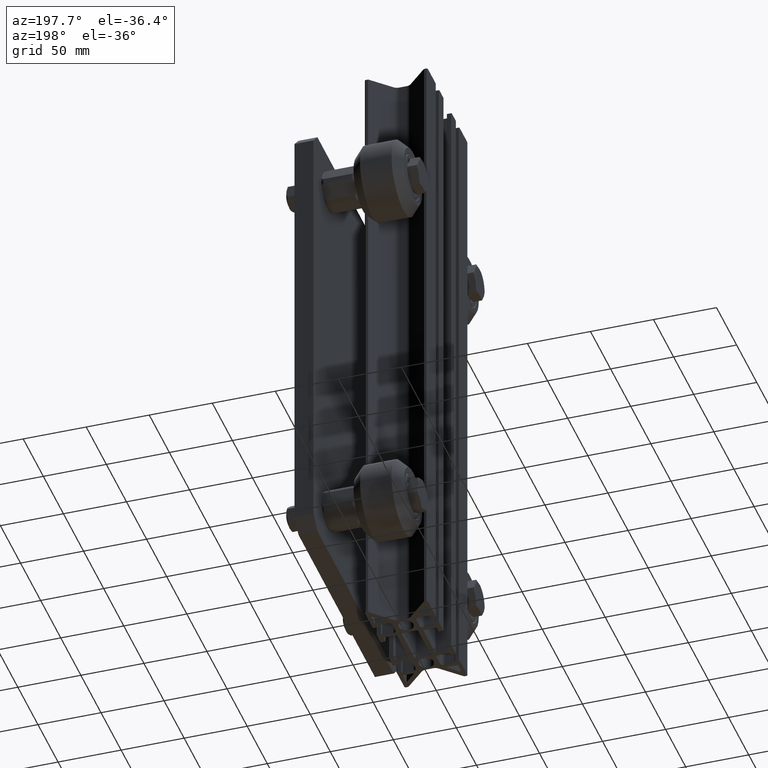
[diagram: clean part render]
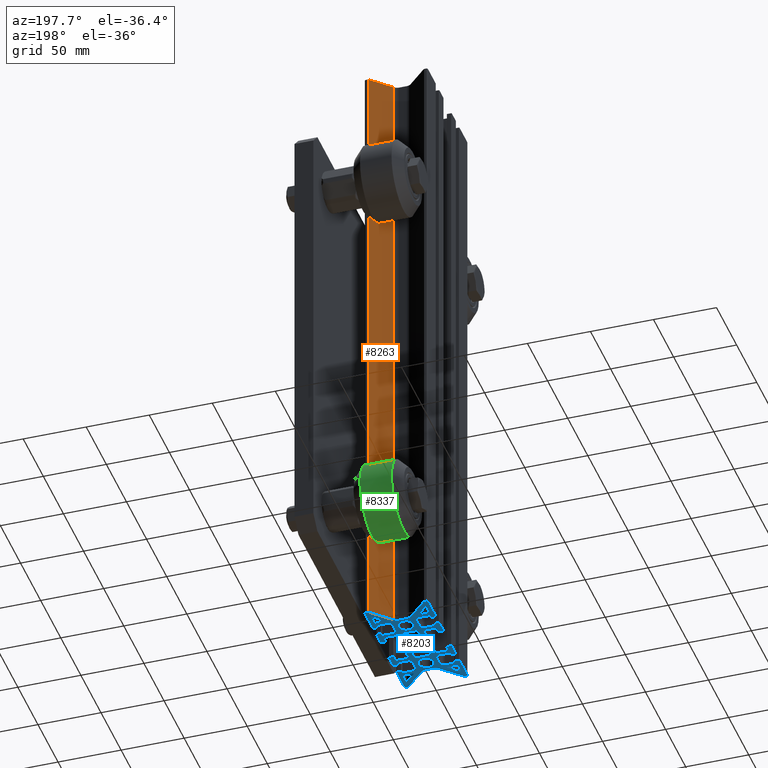
[diagram: same view with three faces highlighted in distinct colors, each labeled with its STEP entity id]
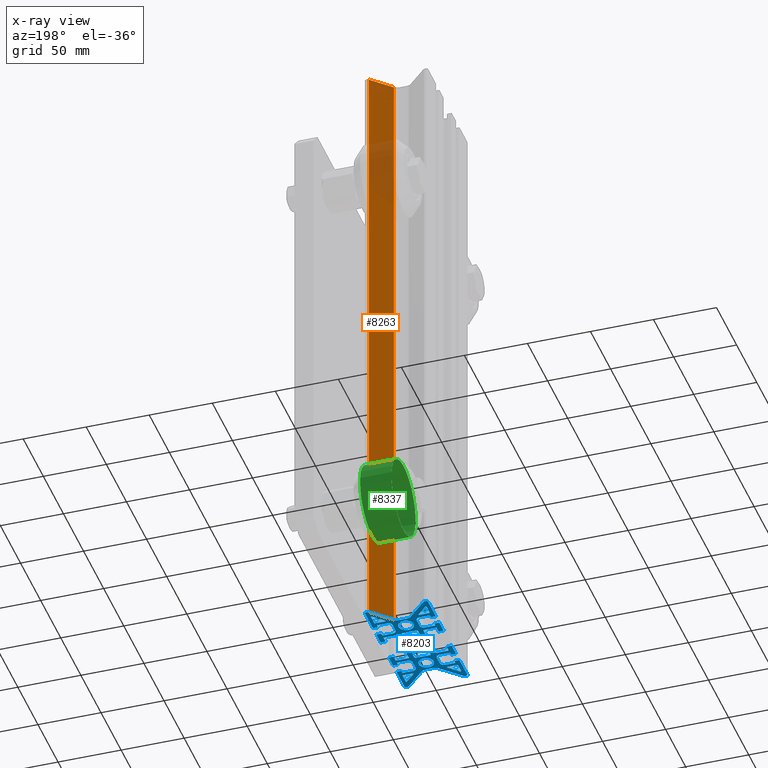
[diagram: x-ray of the same camera — body ghosted, the three highlighted faces saturated]
A machine part, auxiliary view with three faces highlighted in distinct colors.
The next image is the same camera in x-ray (body ghosted, the three faces saturated) — at least one of them is partly hidden behind the body in this view.
Their STEP definitions:

[orange] entity #8263 — the highlighted planar face has unit normal (-0.7071, 0.7071, 0).
#679=FACE_OUTER_BOUND('',#1140,.T.);
#1140=EDGE_LOOP('',(#5979,#5980,#5981,#5982));
#1988=LINE('',#12362,#2611);
#2122=LINE('',#12807,#2745);
#2207=LINE('',#13011,#2830);
#2208=LINE('',#13013,#2831);
#2611=VECTOR('',#9882,10.);
#2745=VECTOR('',#10262,10.);
#2830=VECTOR('',#10501,10.);
#2831=VECTOR('',#10504,10.);
#3252=VERTEX_POINT('',#12359);
#3253=VERTEX_POINT('',#12361);
#3440=VERTEX_POINT('',#12804);
#3441=VERTEX_POINT('',#12806);
#4105=EDGE_CURVE('',#3252,#3253,#1988,.T.);
#4327=EDGE_CURVE('',#3440,#3441,#2122,.T.);
#4430=EDGE_CURVE('',#3440,#3253,#2207,.T.);
#4431=EDGE_CURVE('',#3441,#3252,#2208,.T.);
#5979=ORIENTED_EDGE('',*,*,#4430,.T.);
#5980=ORIENTED_EDGE('',*,*,#4105,.F.);
#5981=ORIENTED_EDGE('',*,*,#4431,.F.);
#5982=ORIENTED_EDGE('',*,*,#4327,.F.);
#7922=PLANE('',#9119);
#8263=ADVANCED_FACE('',(#679),#7922,.T.);
#9119=AXIS2_PLACEMENT_3D('',#13012,#10502,#10503);
#9882=DIRECTION('',(-0.707106781186628,-0.707106781186467,0.));
#10262=DIRECTION('',(0.707106781186628,0.707106781186467,0.));
#10501=DIRECTION('',(0.,0.,1.));
#10502=DIRECTION('center_axis',(-0.707106781186467,0.707106781186628,0.));
#10503=DIRECTION('ref_axis',(-0.707106781186628,-0.707106781186467,0.));
#10504=DIRECTION('',(0.,0.,1.));
#12359=CARTESIAN_POINT('',(21.7514308557036,49.6616216364643,450.));
#12361=CARTESIAN_POINT('',(6.65427531335953,34.5644660941237,450.));
#12362=CARTESIAN_POINT('',(21.7514308557036,49.6616216364643,450.));
#12804=CARTESIAN_POINT('',(6.65427531335953,34.5644660941237,-50.));
#12806=CARTESIAN_POINT('',(21.7514308557036,49.6616216364643,-50.));
#12807=CARTESIAN_POINT('',(21.7514308557036,49.6616216364643,-50.));
#13011=CARTESIAN_POINT('',(6.65427531335953,34.5644660941237,0.));
#13012=CARTESIAN_POINT('Origin',(21.7514308557036,49.6616216364643,0.));
#13013=CARTESIAN_POINT('',(21.7514308557036,49.6616216364643,0.));

[blue] entity #8203 — the highlighted planar face has unit normal (0, 0, 1).
#531=FACE_BOUND('',#1074,.T.);
#532=FACE_BOUND('',#1075,.T.);
#533=FACE_BOUND('',#1076,.T.);
#534=FACE_BOUND('',#1077,.T.);
#535=FACE_BOUND('',#1078,.T.);
#536=FACE_BOUND('',#1079,.T.);
#537=FACE_BOUND('',#1080,.T.);
#619=FACE_OUTER_BOUND('',#1073,.T.);
#1073=EDGE_LOOP('',(#5605,#5606,#5607,#5608,#5609,#5610,#5611,#5612,#5613,
#5614,#5615,#5616,#5617,#5618,#5619,#5620,#5621,#5622,#5623,#5624,#5625,
#5626,#5627,#5628,#5629,#5630,#5631,#5632,#5633,#5634,#5635,#5636,#5637,
#5638,#5639,#5640,#5641,#5642,#5643,#5644,#5645,#5646,#5647,#5648,#5649,
#5650,#5651,#5652,#5653,#5654,#5655,#5656,#5657,#5658,#5659,#5660,#5661,
#5662,#5663,#5664,#5665,#5666,#5667,#5668,#5669,#5670,#5671,#5672,#5673,
#5674,#5675,#5676,#5677,#5678,#5679,#5680,#5681,#5682,#5683,#5684,#5685,
#5686,#5687,#5688,#5689,#5690,#5691,#5692,#5693,#5694,#5695,#5696,#5697,
#5698,#5699,#5700,#5701,#5702,#5703,#5704,#5705,#5706,#5707,#5708));
#1074=EDGE_LOOP('',(#5709,#5710,#5711,#5712,#5713,#5714,#5715,#5716));
#1075=EDGE_LOOP('',(#5717));
#1076=EDGE_LOOP('',(#5718));
#1077=EDGE_LOOP('',(#5719,#5720,#5721,#5722,#5723,#5724));
#1078=EDGE_LOOP('',(#5725,#5726,#5727,#5728,#5729,#5730));
#1079=EDGE_LOOP('',(#5731,#5732,#5733,#5734,#5735,#5736));
#1080=EDGE_LOOP('',(#5737,#5738,#5739,#5740,#5741,#5742));
#1600=CIRCLE('',#8964,1.00000000000164);
#1601=CIRCLE('',#8967,1.00000000000164);
#1602=CIRCLE('',#8970,1.00000000000164);
#1603=CIRCLE('',#8973,1.00000000000164);
#1604=CIRCLE('',#8976,5.99999999999991);
#1605=CIRCLE('',#8978,5.99999999999991);
#1606=CIRCLE('',#8981,0.5);
#1607=CIRCLE('',#8984,0.500000000000014);
#1608=CIRCLE('',#8987,0.5);
#1609=CIRCLE('',#8990,0.500000000000014);
#1610=CIRCLE('',#8993,0.5);
#1611=CIRCLE('',#8996,0.5);
#1612=CIRCLE('',#8999,0.500000000000014);
#1613=CIRCLE('',#9002,0.5);
#1614=CIRCLE('',#9005,0.5);
#1615=CIRCLE('',#9007,0.5);
#1616=CIRCLE('',#9010,0.5);
#1617=CIRCLE('',#9013,0.500000000000014);
#1618=CIRCLE('',#9016,1.00000000000164);
#1619=CIRCLE('',#9017,1.00000000000164);
#1620=CIRCLE('',#9018,5.00000000000011);
#1621=CIRCLE('',#9019,5.);
#1622=CIRCLE('',#9020,1.00000000000164);
#1623=CIRCLE('',#9021,1.00000000000164);
#1624=CIRCLE('',#9022,0.5);
#1625=CIRCLE('',#9023,0.5);
#1626=CIRCLE('',#9024,3.00000000000013);
#1627=CIRCLE('',#9025,3.00000000000004);
#1628=CIRCLE('',#9026,0.499999999999914);
#1629=CIRCLE('',#9027,0.5);
#1630=CIRCLE('',#9028,0.5);
#1631=CIRCLE('',#9029,0.5);
#1632=CIRCLE('',#9030,0.5);
#1633=CIRCLE('',#9031,0.5);
#1634=CIRCLE('',#9032,0.5);
#1635=CIRCLE('',#9033,0.5);
#1636=CIRCLE('',#9034,3.00000000000004);
#1637=CIRCLE('',#9035,3.00000000000004);
#1638=CIRCLE('',#9036,0.5);
#1639=CIRCLE('',#9037,0.5);
#1640=CIRCLE('',#9038,1.00000000000164);
#1641=CIRCLE('',#9039,1.00000000000164);
#1642=CIRCLE('',#9040,4.99999999999991);
#1643=CIRCLE('',#9041,5.);
#1644=CIRCLE('',#9042,1.00000000000164);
#1645=CIRCLE('',#9043,1.00000000000164);
#1646=CIRCLE('',#9044,0.5);
#1647=CIRCLE('',#9045,0.5);
#1648=CIRCLE('',#9046,3.00000000000013);
#1649=CIRCLE('',#9047,3.00000000000004);
#1650=CIRCLE('',#9048,0.5);
#1651=CIRCLE('',#9049,0.5);
#1652=CIRCLE('',#9050,0.5);
#1653=CIRCLE('',#9051,0.5);
#1654=CIRCLE('',#9052,0.5);
#1655=CIRCLE('',#9053,0.5);
#1656=CIRCLE('',#9054,0.499999999999869);
#1657=CIRCLE('',#9055,0.5);
#1658=CIRCLE('',#9056,3.00000000000004);
#1659=CIRCLE('',#9057,3.00000000000013);
#1660=CIRCLE('',#9058,0.5);
#1661=CIRCLE('',#9059,0.5);
#2040=LINE('',#12556,#2663);
#2043=LINE('',#12564,#2666);
#2046=LINE('',#12572,#2669);
#2049=LINE('',#12579,#2672);
#2053=LINE('',#12592,#2676);
#2056=LINE('',#12600,#2679);
#2059=LINE('',#12608,#2682);
#2062=LINE('',#12616,#2685);
#2065=LINE('',#12624,#2688);
#2068=LINE('',#12632,#2691);
#2071=LINE('',#12640,#2694);
#2074=LINE('',#12648,#2697);
#2077=LINE('',#12656,#2700);
#2081=LINE('',#12668,#2704);
#2084=LINE('',#12676,#2707);
#2087=LINE('',#12683,#2710);
#2088=LINE('',#12687,#2711);
#2089=LINE('',#12691,#2712);
#2090=LINE('',#12695,#2713);
#2091=LINE('',#12699,#2714);
#2092=LINE('',#12703,#2715);
#2093=LINE('',#12707,#2716);
#2094=LINE('',#12711,#2717);
#2095=LINE('',#12715,#2718);
#2096=LINE('',#12719,#2719);
#2097=LINE('',#12721,#2720);
#2098=LINE('',#12725,#2721);
#2099=LINE('',#12729,#2722);
#2100=LINE('',#12731,#2723);
#2101=LINE('',#12735,#2724);
#2102=LINE('',#12739,#2725);
#2103=LINE('',#12743,#2726);
#2104=LINE('',#12747,#2727);
#2105=LINE('',#12749,#2728);
#2106=LINE('',#12751,#2729);
#2107=LINE('',#12753,#2730);
#2108=LINE('',#12755,#2731);
#2109=LINE('',#12759,#2732);
#2110=LINE('',#12763,#2733);
#2111=LINE('',#12767,#2734);
#2112=LINE('',#12771,#2735);
#2113=LINE('',#12773,#2736);
#2114=LINE('',#12777,#2737);
#2115=LINE('',#12781,#2738);
#2116=LINE('',#12783,#2739);
#2117=LINE('',#12787,#2740);
#2118=LINE('',#12791,#2741);
#2119=LINE('',#12795,#2742);
#2120=LINE('',#12799,#2743);
#2121=LINE('',#12803,#2744);
#2122=LINE('',#12807,#2745);
#2123=LINE('',#12811,#2746);
#2124=LINE('',#12815,#2747);
#2125=LINE('',#12819,#2748);
#2126=LINE('',#12823,#2749);
#2127=LINE('',#12825,#2750);
#2128=LINE('',#12829,#2751);
#2129=LINE('',#12833,#2752);
#2130=LINE('',#12835,#2753);
#2131=LINE('',#12839,#2754);
#2132=LINE('',#12843,#2755);
#2133=LINE('',#12847,#2756);
#2134=LINE('',#12851,#2757);
#2135=LINE('',#12853,#2758);
#2136=LINE('',#12855,#2759);
#2137=LINE('',#12857,#2760);
#2138=LINE('',#12859,#2761);
#2139=LINE('',#12863,#2762);
#2140=LINE('',#12867,#2763);
#2141=LINE('',#12871,#2764);
#2142=LINE('',#12875,#2765);
#2143=LINE('',#12877,#2766);
#2144=LINE('',#12881,#2767);
#2145=LINE('',#12885,#2768);
#2146=LINE('',#12887,#2769);
#2147=LINE('',#12891,#2770);
#2663=VECTOR('',#10028,10.);
#2666=VECTOR('',#10037,10.);
#2669=VECTOR('',#10046,10.);
#2672=VECTOR('',#10055,10.);
#2676=VECTOR('',#10069,10.);
#2679=VECTOR('',#10078,10.);
#2682=VECTOR('',#10087,10.);
#2685=VECTOR('',#10096,10.);
#2688=VECTOR('',#10105,10.);
#2691=VECTOR('',#10114,10.);
#2694=VECTOR('',#10123,10.);
#2697=VECTOR('',#10132,10.);
#2700=VECTOR('',#10141,10.);
#2704=VECTOR('',#10155,10.);
#2707=VECTOR('',#10164,10.);
#2710=VECTOR('',#10173,10.);
#2711=VECTOR('',#10176,10.);
#2712=VECTOR('',#10179,10.);
#2713=VECTOR('',#10182,10.);
#2714=VECTOR('',#10185,10.);
#2715=VECTOR('',#10188,10.);
#2716=VECTOR('',#10191,10.);
#2717=VECTOR('',#10194,10.);
#2718=VECTOR('',#10197,10.);
#2719=VECTOR('',#10200,10.);
#2720=VECTOR('',#10201,10.);
#2721=VECTOR('',#10204,10.);
#2722=VECTOR('',#10207,10.);
#2723=VECTOR('',#10208,10.);
#2724=VECTOR('',#10211,10.);
#2725=VECTOR('',#10214,10.);
#2726=VECTOR('',#10217,10.);
#2727=VECTOR('',#10220,10.);
#2728=VECTOR('',#10221,10.);
#2729=VECTOR('',#10222,10.);
#2730=VECTOR('',#10223,10.);
#2731=VECTOR('',#10224,10.);
#2732=VECTOR('',#10227,10.);
#2733=VECTOR('',#10230,10.);
#2734=VECTOR('',#10233,10.);
#2735=VECTOR('',#10236,10.);
#2736=VECTOR('',#10237,10.);
#2737=VECTOR('',#10240,10.);
#2738=VECTOR('',#10243,10.);
#2739=VECTOR('',#10244,10.);
#2740=VECTOR('',#10247,10.);
#2741=VECTOR('',#10250,10.);
#2742=VECTOR('',#10253,10.);
#2743=VECTOR('',#10256,10.);
#2744=VECTOR('',#10259,10.);
#2745=VECTOR('',#10262,10.);
#2746=VECTOR('',#10265,10.);
#2747=VECTOR('',#10268,10.);
#2748=VECTOR('',#10271,10.);
#2749=VECTOR('',#10274,10.);
#2750=VECTOR('',#10275,10.);
#2751=VECTOR('',#10278,10.);
#2752=VECTOR('',#10281,10.);
#2753=VECTOR('',#10282,10.);
#2754=VECTOR('',#10285,10.);
#2755=VECTOR('',#10288,10.);
#2756=VECTOR('',#10291,10.);
#2757=VECTOR('',#10294,10.);
#2758=VECTOR('',#10295,10.);
#2759=VECTOR('',#10296,10.);
#2760=VECTOR('',#10297,10.);
#2761=VECTOR('',#10298,10.);
#2762=VECTOR('',#10301,10.);
#2763=VECTOR('',#10304,10.);
#2764=VECTOR('',#10307,10.);
#2765=VECTOR('',#10310,10.);
#2766=VECTOR('',#10311,10.);
#2767=VECTOR('',#10314,10.);
#2768=VECTOR('',#10317,10.);
#2769=VECTOR('',#10318,10.);
#2770=VECTOR('',#10321,10.);
#3346=VERTEX_POINT('',#12549);
#3347=VERTEX_POINT('',#12551);
#3348=VERTEX_POINT('',#12555);
#3349=VERTEX_POINT('',#12559);
#3350=VERTEX_POINT('',#12563);
#3351=VERTEX_POINT('',#12567);
#3352=VERTEX_POINT('',#12571);
#3353=VERTEX_POINT('',#12575);
#3354=VERTEX_POINT('',#12581);
#3355=VERTEX_POINT('',#12585);
#3356=VERTEX_POINT('',#12589);
#3357=VERTEX_POINT('',#12591);
#3358=VERTEX_POINT('',#12595);
#3359=VERTEX_POINT('',#12599);
#3360=VERTEX_POINT('',#12603);
#3361=VERTEX_POINT('',#12607);
#3362=VERTEX_POINT('',#12613);
#3363=VERTEX_POINT('',#12615);
#3364=VERTEX_POINT('',#12619);
#3365=VERTEX_POINT('',#12623);
#3366=VERTEX_POINT('',#12627);
#3367=VERTEX_POINT('',#12631);
#3368=VERTEX_POINT('',#12637);
#3369=VERTEX_POINT('',#12639);
#3370=VERTEX_POINT('',#12643);
#3371=VERTEX_POINT('',#12647);
#3372=VERTEX_POINT('',#12651);
#3373=VERTEX_POINT('',#12655);
#3374=VERTEX_POINT('',#12661);
#3375=VERTEX_POINT('',#12663);
#3376=VERTEX_POINT('',#12667);
#3377=VERTEX_POINT('',#12671);
#3378=VERTEX_POINT('',#12675);
#3379=VERTEX_POINT('',#12679);
#3380=VERTEX_POINT('',#12685);
#3381=VERTEX_POINT('',#12686);
#3382=VERTEX_POINT('',#12688);
#3383=VERTEX_POINT('',#12690);
#3384=VERTEX_POINT('',#12692);
#3385=VERTEX_POINT('',#12694);
#3386=VERTEX_POINT('',#12696);
#3387=VERTEX_POINT('',#12698);
#3388=VERTEX_POINT('',#12700);
#3389=VERTEX_POINT('',#12702);
#3390=VERTEX_POINT('',#12704);
#3391=VERTEX_POINT('',#12706);
#3392=VERTEX_POINT('',#12708);
#3393=VERTEX_POINT('',#12710);
#3394=VERTEX_POINT('',#12712);
#3395=VERTEX_POINT('',#12714);
#3396=VERTEX_POINT('',#12716);
#3397=VERTEX_POINT('',#12718);
#3398=VERTEX_POINT('',#12720);
#3399=VERTEX_POINT('',#12722);
#3400=VERTEX_POINT('',#12724);
#3401=VERTEX_POINT('',#12726);
#3402=VERTEX_POINT('',#12728);
#3403=VERTEX_POINT('',#12730);
#3404=VERTEX_POINT('',#12732);
#3405=VERTEX_POINT('',#12734);
#3406=VERTEX_POINT('',#12736);
#3407=VERTEX_POINT('',#12738);
#3408=VERTEX_POINT('',#12740);
#3409=VERTEX_POINT('',#12742);
#3410=VERTEX_POINT('',#12744);
#3411=VERTEX_POINT('',#12746);
#3412=VERTEX_POINT('',#12748);
#3413=VERTEX_POINT('',#12750);
#3414=VERTEX_POINT('',#12752);
#3415=VERTEX_POINT('',#12754);
#3416=VERTEX_POINT('',#12756);
#3417=VERTEX_POINT('',#12758);
#3418=VERTEX_POINT('',#12760);
#3419=VERTEX_POINT('',#12762);
#3420=VERTEX_POINT('',#12764);
#3421=VERTEX_POINT('',#12766);
#3422=VERTEX_POINT('',#12768);
#3423=VERTEX_POINT('',#12770);
#3424=VERTEX_POINT('',#12772);
#3425=VERTEX_POINT('',#12774);
#3426=VERTEX_POINT('',#12776);
#3427=VERTEX_POINT('',#12778);
#3428=VERTEX_POINT('',#12780);
#3429=VERTEX_POINT('',#12782);
#3430=VERTEX_POINT('',#12784);
#3431=VERTEX_POINT('',#12786);
#3432=VERTEX_POINT('',#12788);
#3433=VERTEX_POINT('',#12790);
#3434=VERTEX_POINT('',#12792);
#3435=VERTEX_POINT('',#12794);
#3436=VERTEX_POINT('',#12796);
#3437=VERTEX_POINT('',#12798);
#3438=VERTEX_POINT('',#12800);
#3439=VERTEX_POINT('',#12802);
#3440=VERTEX_POINT('',#12804);
#3441=VERTEX_POINT('',#12806);
#3442=VERTEX_POINT('',#12808);
#3443=VERTEX_POINT('',#12810);
#3444=VERTEX_POINT('',#12812);
#3445=VERTEX_POINT('',#12814);
#3446=VERTEX_POINT('',#12816);
#3447=VERTEX_POINT('',#12818);
#3448=VERTEX_POINT('',#12820);
#3449=VERTEX_POINT('',#12822);
#3450=VERTEX_POINT('',#12824);
#3451=VERTEX_POINT('',#12826);
#3452=VERTEX_POINT('',#12828);
#3453=VERTEX_POINT('',#12830);
#3454=VERTEX_POINT('',#12832);
#3455=VERTEX_POINT('',#12834);
#3456=VERTEX_POINT('',#12836);
#3457=VERTEX_POINT('',#12838);
#3458=VERTEX_POINT('',#12840);
#3459=VERTEX_POINT('',#12842);
#3460=VERTEX_POINT('',#12844);
#3461=VERTEX_POINT('',#12846);
#3462=VERTEX_POINT('',#12848);
#3463=VERTEX_POINT('',#12850);
#3464=VERTEX_POINT('',#12852);
#3465=VERTEX_POINT('',#12854);
#3466=VERTEX_POINT('',#12856);
#3467=VERTEX_POINT('',#12858);
#3468=VERTEX_POINT('',#12860);
#3469=VERTEX_POINT('',#12862);
#3470=VERTEX_POINT('',#12864);
#3471=VERTEX_POINT('',#12866);
#3472=VERTEX_POINT('',#12868);
#3473=VERTEX_POINT('',#12870);
#3474=VERTEX_POINT('',#12872);
#3475=VERTEX_POINT('',#12874);
#3476=VERTEX_POINT('',#12876);
#3477=VERTEX_POINT('',#12878);
#3478=VERTEX_POINT('',#12880);
#3479=VERTEX_POINT('',#12882);
#3480=VERTEX_POINT('',#12884);
#3481=VERTEX_POINT('',#12886);
#3482=VERTEX_POINT('',#12888);
#3483=VERTEX_POINT('',#12890);
#4200=EDGE_CURVE('',#3347,#3346,#1600,.T.);
#4202=EDGE_CURVE('',#3348,#3347,#2040,.T.);
#4204=EDGE_CURVE('',#3349,#3348,#1601,.T.);
#4206=EDGE_CURVE('',#3350,#3349,#2043,.T.);
#4208=EDGE_CURVE('',#3351,#3350,#1602,.T.);
#4210=EDGE_CURVE('',#3352,#3351,#2046,.T.);
#4212=EDGE_CURVE('',#3353,#3352,#1603,.T.);
#4214=EDGE_CURVE('',#3346,#3353,#2049,.T.);
#4215=EDGE_CURVE('',#3354,#3354,#1604,.T.);
#4217=EDGE_CURVE('',#3355,#3355,#1605,.T.);
#4220=EDGE_CURVE('',#3357,#3356,#2053,.T.);
#4222=EDGE_CURVE('',#3358,#3357,#1606,.T.);
#4224=EDGE_CURVE('',#3359,#3358,#2056,.T.);
#4226=EDGE_CURVE('',#3360,#3359,#1607,.T.);
#4228=EDGE_CURVE('',#3361,#3360,#2059,.T.);
#4230=EDGE_CURVE('',#3356,#3361,#1608,.T.);
#4232=EDGE_CURVE('',#3363,#3362,#2062,.T.);
#4234=EDGE_CURVE('',#3364,#3363,#1609,.T.);
#4236=EDGE_CURVE('',#3365,#3364,#2065,.T.);
#4238=EDGE_CURVE('',#3366,#3365,#1610,.T.);
#4240=EDGE_CURVE('',#3367,#3366,#2068,.T.);
#4242=EDGE_CURVE('',#3362,#3367,#1611,.T.);
#4244=EDGE_CURVE('',#3369,#3368,#2071,.T.);
#4246=EDGE_CURVE('',#3370,#3369,#1612,.T.);
#4248=EDGE_CURVE('',#3371,#3370,#2074,.T.);
#4250=EDGE_CURVE('',#3372,#3371,#1613,.T.);
#4252=EDGE_CURVE('',#3373,#3372,#2077,.T.);
#4254=EDGE_CURVE('',#3368,#3373,#1614,.T.);
#4256=EDGE_CURVE('',#3375,#3374,#1615,.T.);
#4258=EDGE_CURVE('',#3376,#3375,#2081,.T.);
#4260=EDGE_CURVE('',#3377,#3376,#1616,.T.);
#4262=EDGE_CURVE('',#3378,#3377,#2084,.T.);
#4264=EDGE_CURVE('',#3379,#3378,#1617,.T.);
#4266=EDGE_CURVE('',#3374,#3379,#2087,.T.);
#4267=EDGE_CURVE('',#3380,#3381,#2088,.T.);
#4268=EDGE_CURVE('',#3381,#3382,#1618,.T.);
#4269=EDGE_CURVE('',#3382,#3383,#2089,.T.);
#4270=EDGE_CURVE('',#3383,#3384,#1619,.T.);
#4271=EDGE_CURVE('',#3384,#3385,#2090,.T.);
#4272=EDGE_CURVE('',#3385,#3386,#1620,.T.);
#4273=EDGE_CURVE('',#3386,#3387,#2091,.T.);
#4274=EDGE_CURVE('',#3387,#3388,#1621,.T.);
#4275=EDGE_CURVE('',#3388,#3389,#2092,.T.);
#4276=EDGE_CURVE('',#3389,#3390,#1622,.T.);
#4277=EDGE_CURVE('',#3390,#3391,#2093,.T.);
#4278=EDGE_CURVE('',#3391,#3392,#1623,.T.);
#4279=EDGE_CURVE('',#3392,#3393,#2094,.T.);
#4280=EDGE_CURVE('',#3393,#3394,#1624,.T.);
#4281=EDGE_CURVE('',#3394,#3395,#2095,.T.);
#4282=EDGE_CURVE('',#3395,#3396,#1625,.T.);
#4283=EDGE_CURVE('',#3396,#3397,#2096,.T.);
#4284=EDGE_CURVE('',#3397,#3398,#2097,.T.);
#4285=EDGE_CURVE('',#3398,#3399,#1626,.T.);
#4286=EDGE_CURVE('',#3399,#3400,#2098,.T.);
#4287=EDGE_CURVE('',#3400,#3401,#1627,.T.);
#4288=EDGE_CURVE('',#3401,#3402,#2099,.T.);
#4289=EDGE_CURVE('',#3402,#3403,#2100,.T.);
#4290=EDGE_CURVE('',#3403,#3404,#1628,.T.);
#4291=EDGE_CURVE('',#3404,#3405,#2101,.T.);
#4292=EDGE_CURVE('',#3405,#3406,#1629,.T.);
#4293=EDGE_CURVE('',#3406,#3407,#2102,.T.);
#4294=EDGE_CURVE('',#3407,#3408,#1630,.T.);
#4295=EDGE_CURVE('',#3408,#3409,#2103,.T.);
#4296=EDGE_CURVE('',#3409,#3410,#1631,.T.);
#4297=EDGE_CURVE('',#3410,#3411,#2104,.T.);
#4298=EDGE_CURVE('',#3411,#3412,#2105,.T.);
#4299=EDGE_CURVE('',#3412,#3413,#2106,.T.);
#4300=EDGE_CURVE('',#3413,#3414,#2107,.T.);
#4301=EDGE_CURVE('',#3414,#3415,#2108,.T.);
#4302=EDGE_CURVE('',#3415,#3416,#1632,.T.);
#4303=EDGE_CURVE('',#3416,#3417,#2109,.T.);
#4304=EDGE_CURVE('',#3417,#3418,#1633,.T.);
#4305=EDGE_CURVE('',#3418,#3419,#2110,.T.);
#4306=EDGE_CURVE('',#3419,#3420,#1634,.T.);
#4307=EDGE_CURVE('',#3420,#3421,#2111,.T.);
#4308=EDGE_CURVE('',#3421,#3422,#1635,.T.);
#4309=EDGE_CURVE('',#3422,#3423,#2112,.T.);
#4310=EDGE_CURVE('',#3423,#3424,#2113,.T.);
#4311=EDGE_CURVE('',#3424,#3425,#1636,.T.);
#4312=EDGE_CURVE('',#3425,#3426,#2114,.T.);
#4313=EDGE_CURVE('',#3426,#3427,#1637,.T.);
#4314=EDGE_CURVE('',#3427,#3428,#2115,.T.);
#4315=EDGE_CURVE('',#3428,#3429,#2116,.T.);
#4316=EDGE_CURVE('',#3429,#3430,#1638,.T.);
#4317=EDGE_CURVE('',#3430,#3431,#2117,.T.);
#4318=EDGE_CURVE('',#3431,#3432,#1639,.T.);
#4319=EDGE_CURVE('',#3432,#3433,#2118,.T.);
#4320=EDGE_CURVE('',#3433,#3434,#1640,.T.);
#4321=EDGE_CURVE('',#3434,#3435,#2119,.T.);
#4322=EDGE_CURVE('',#3435,#3436,#1641,.T.);
#4323=EDGE_CURVE('',#3436,#3437,#2120,.T.);
#4324=EDGE_CURVE('',#3437,#3438,#1642,.T.);
#4325=EDGE_CURVE('',#3438,#3439,#2121,.T.);
#4326=EDGE_CURVE('',#3439,#3440,#1643,.T.);
#4327=EDGE_CURVE('',#3440,#3441,#2122,.T.);
#4328=EDGE_CURVE('',#3441,#3442,#1644,.T.);
#4329=EDGE_CURVE('',#3442,#3443,#2123,.T.);
#4330=EDGE_CURVE('',#3443,#3444,#1645,.T.);
#4331=EDGE_CURVE('',#3444,#3445,#2124,.T.);
#4332=EDGE_CURVE('',#3445,#3446,#1646,.T.);
#4333=EDGE_CURVE('',#3446,#3447,#2125,.T.);
#4334=EDGE_CURVE('',#3447,#3448,#1647,.T.);
#4335=EDGE_CURVE('',#3448,#3449,#2126,.T.);
#4336=EDGE_CURVE('',#3449,#3450,#2127,.T.);
#4337=EDGE_CURVE('',#3450,#3451,#1648,.T.);
#4338=EDGE_CURVE('',#3451,#3452,#2128,.T.);
#4339=EDGE_CURVE('',#3452,#3453,#1649,.T.);
#4340=EDGE_CURVE('',#3453,#3454,#2129,.T.);
#4341=EDGE_CURVE('',#3454,#3455,#2130,.T.);
#4342=EDGE_CURVE('',#3455,#3456,#1650,.T.);
#4343=EDGE_CURVE('',#3456,#3457,#2131,.T.);
#4344=EDGE_CURVE('',#3457,#3458,#1651,.T.);
#4345=EDGE_CURVE('',#3458,#3459,#2132,.T.);
#4346=EDGE_CURVE('',#3459,#3460,#1652,.T.);
#4347=EDGE_CURVE('',#3460,#3461,#2133,.T.);
#4348=EDGE_CURVE('',#3461,#3462,#1653,.T.);
#4349=EDGE_CURVE('',#3462,#3463,#2134,.T.);
#4350=EDGE_CURVE('',#3463,#3464,#2135,.T.);
#4351=EDGE_CURVE('',#3464,#3465,#2136,.T.);
#4352=EDGE_CURVE('',#3465,#3466,#2137,.T.);
#4353=EDGE_CURVE('',#3466,#3467,#2138,.T.);
#4354=EDGE_CURVE('',#3467,#3468,#1654,.T.);
#4355=EDGE_CURVE('',#3468,#3469,#2139,.T.);
#4356=EDGE_CURVE('',#3469,#3470,#1655,.T.);
#4357=EDGE_CURVE('',#3470,#3471,#2140,.T.);
#4358=EDGE_CURVE('',#3471,#3472,#1656,.T.);
#4359=EDGE_CURVE('',#3472,#3473,#2141,.T.);
#4360=EDGE_CURVE('',#3473,#3474,#1657,.T.);
#4361=EDGE_CURVE('',#3474,#3475,#2142,.T.);
#4362=EDGE_CURVE('',#3475,#3476,#2143,.T.);
#4363=EDGE_CURVE('',#3476,#3477,#1658,.T.);
#4364=EDGE_CURVE('',#3477,#3478,#2144,.T.);
#4365=EDGE_CURVE('',#3478,#3479,#1659,.T.);
#4366=EDGE_CURVE('',#3479,#3480,#2145,.T.);
#4367=EDGE_CURVE('',#3480,#3481,#2146,.T.);
#4368=EDGE_CURVE('',#3481,#3482,#1660,.T.);
#4369=EDGE_CURVE('',#3482,#3483,#2147,.T.);
#4370=EDGE_CURVE('',#3483,#3380,#1661,.T.);
#5605=ORIENTED_EDGE('',*,*,#4267,.T.);
#5606=ORIENTED_EDGE('',*,*,#4268,.T.);
#5607=ORIENTED_EDGE('',*,*,#4269,.T.);
#5608=ORIENTED_EDGE('',*,*,#4270,.T.);
#5609=ORIENTED_EDGE('',*,*,#4271,.T.);
#5610=ORIENTED_EDGE('',*,*,#4272,.T.);
#5611=ORIENTED_EDGE('',*,*,#4273,.T.);
#5612=ORIENTED_EDGE('',*,*,#4274,.T.);
#5613=ORIENTED_EDGE('',*,*,#4275,.T.);
#5614=ORIENTED_EDGE('',*,*,#4276,.T.);
#5615=ORIENTED_EDGE('',*,*,#4277,.T.);
#5616=ORIENTED_EDGE('',*,*,#4278,.T.);
#5617=ORIENTED_EDGE('',*,*,#4279,.T.);
#5618=ORIENTED_EDGE('',*,*,#4280,.T.);
#5619=ORIENTED_EDGE('',*,*,#4281,.T.);
#5620=ORIENTED_EDGE('',*,*,#4282,.T.);
#5621=ORIENTED_EDGE('',*,*,#4283,.T.);
#5622=ORIENTED_EDGE('',*,*,#4284,.T.);
#5623=ORIENTED_EDGE('',*,*,#4285,.T.);
#5624=ORIENTED_EDGE('',*,*,#4286,.T.);
#5625=ORIENTED_EDGE('',*,*,#4287,.T.);
#5626=ORIENTED_EDGE('',*,*,#4288,.T.);
#5627=ORIENTED_EDGE('',*,*,#4289,.T.);
#5628=ORIENTED_EDGE('',*,*,#4290,.T.);
#5629=ORIENTED_EDGE('',*,*,#4291,.T.);
#5630=ORIENTED_EDGE('',*,*,#4292,.T.);
#5631=ORIENTED_EDGE('',*,*,#4293,.T.);
#5632=ORIENTED_EDGE('',*,*,#4294,.T.);
#5633=ORIENTED_EDGE('',*,*,#4295,.T.);
#5634=ORIENTED_EDGE('',*,*,#4296,.T.);
#5635=ORIENTED_EDGE('',*,*,#4297,.T.);
#5636=ORIENTED_EDGE('',*,*,#4298,.T.);
#5637=ORIENTED_EDGE('',*,*,#4299,.T.);
#5638=ORIENTED_EDGE('',*,*,#4300,.T.);
#5639=ORIENTED_EDGE('',*,*,#4301,.T.);
#5640=ORIENTED_EDGE('',*,*,#4302,.T.);
#5641=ORIENTED_EDGE('',*,*,#4303,.T.);
#5642=ORIENTED_EDGE('',*,*,#4304,.T.);
#5643=ORIENTED_EDGE('',*,*,#4305,.T.);
#5644=ORIENTED_EDGE('',*,*,#4306,.T.);
#5645=ORIENTED_EDGE('',*,*,#4307,.T.);
#5646=ORIENTED_EDGE('',*,*,#4308,.T.);
#5647=ORIENTED_EDGE('',*,*,#4309,.T.);
#5648=ORIENTED_EDGE('',*,*,#4310,.T.);
#5649=ORIENTED_EDGE('',*,*,#4311,.T.);
#5650=ORIENTED_EDGE('',*,*,#4312,.T.);
#5651=ORIENTED_EDGE('',*,*,#4313,.T.);
#5652=ORIENTED_EDGE('',*,*,#4314,.T.);
#5653=ORIENTED_EDGE('',*,*,#4315,.T.);
#5654=ORIENTED_EDGE('',*,*,#4316,.T.);
#5655=ORIENTED_EDGE('',*,*,#4317,.T.);
#5656=ORIENTED_EDGE('',*,*,#4318,.T.);
#5657=ORIENTED_EDGE('',*,*,#4319,.T.);
#5658=ORIENTED_EDGE('',*,*,#4320,.T.);
#5659=ORIENTED_EDGE('',*,*,#4321,.T.);
#5660=ORIENTED_EDGE('',*,*,#4322,.T.);
#5661=ORIENTED_EDGE('',*,*,#4323,.T.);
#5662=ORIENTED_EDGE('',*,*,#4324,.T.);
#5663=ORIENTED_EDGE('',*,*,#4325,.T.);
#5664=ORIENTED_EDGE('',*,*,#4326,.T.);
#5665=ORIENTED_EDGE('',*,*,#4327,.T.);
#5666=ORIENTED_EDGE('',*,*,#4328,.T.);
#5667=ORIENTED_EDGE('',*,*,#4329,.T.);
#5668=ORIENTED_EDGE('',*,*,#4330,.T.);
#5669=ORIENTED_EDGE('',*,*,#4331,.T.);
#5670=ORIENTED_EDGE('',*,*,#4332,.T.);
#5671=ORIENTED_EDGE('',*,*,#4333,.T.);
#5672=ORIENTED_EDGE('',*,*,#4334,.T.);
#5673=ORIENTED_EDGE('',*,*,#4335,.T.);
#5674=ORIENTED_EDGE('',*,*,#4336,.T.);
#5675=ORIENTED_EDGE('',*,*,#4337,.T.);
#5676=ORIENTED_EDGE('',*,*,#4338,.T.);
#5677=ORIENTED_EDGE('',*,*,#4339,.T.);
#5678=ORIENTED_EDGE('',*,*,#4340,.T.);
#5679=ORIENTED_EDGE('',*,*,#4341,.T.);
#5680=ORIENTED_EDGE('',*,*,#4342,.T.);
#5681=ORIENTED_EDGE('',*,*,#4343,.T.);
#5682=ORIENTED_EDGE('',*,*,#4344,.T.);
#5683=ORIENTED_EDGE('',*,*,#4345,.T.);
#5684=ORIENTED_EDGE('',*,*,#4346,.T.);
#5685=ORIENTED_EDGE('',*,*,#4347,.T.);
#5686=ORIENTED_EDGE('',*,*,#4348,.T.);
#5687=ORIENTED_EDGE('',*,*,#4349,.T.);
#5688=ORIENTED_EDGE('',*,*,#4350,.T.);
#5689=ORIENTED_EDGE('',*,*,#4351,.T.);
#5690=ORIENTED_EDGE('',*,*,#4352,.T.);
#5691=ORIENTED_EDGE('',*,*,#4353,.T.);
#5692=ORIENTED_EDGE('',*,*,#4354,.T.);
#5693=ORIENTED_EDGE('',*,*,#4355,.T.);
#5694=ORIENTED_EDGE('',*,*,#4356,.T.);
#5695=ORIENTED_EDGE('',*,*,#4357,.T.);
#5696=ORIENTED_EDGE('',*,*,#4358,.T.);
#5697=ORIENTED_EDGE('',*,*,#4359,.T.);
#5698=ORIENTED_EDGE('',*,*,#4360,.T.);
#5699=ORIENTED_EDGE('',*,*,#4361,.T.);
#5700=ORIENTED_EDGE('',*,*,#4362,.T.);
#5701=ORIENTED_EDGE('',*,*,#4363,.T.);
#5702=ORIENTED_EDGE('',*,*,#4364,.T.);
#5703=ORIENTED_EDGE('',*,*,#4365,.T.);
#5704=ORIENTED_EDGE('',*,*,#4366,.T.);
#5705=ORIENTED_EDGE('',*,*,#4367,.T.);
#5706=ORIENTED_EDGE('',*,*,#4368,.T.);
#5707=ORIENTED_EDGE('',*,*,#4369,.T.);
#5708=ORIENTED_EDGE('',*,*,#4370,.T.);
#5709=ORIENTED_EDGE('',*,*,#4200,.T.);
#5710=ORIENTED_EDGE('',*,*,#4214,.T.);
#5711=ORIENTED_EDGE('',*,*,#4212,.T.);
#5712=ORIENTED_EDGE('',*,*,#4210,.T.);
#5713=ORIENTED_EDGE('',*,*,#4208,.T.);
#5714=ORIENTED_EDGE('',*,*,#4206,.T.);
#5715=ORIENTED_EDGE('',*,*,#4204,.T.);
#5716=ORIENTED_EDGE('',*,*,#4202,.T.);
#5717=ORIENTED_EDGE('',*,*,#4215,.T.);
#5718=ORIENTED_EDGE('',*,*,#4217,.T.);
#5719=ORIENTED_EDGE('',*,*,#4220,.T.);
#5720=ORIENTED_EDGE('',*,*,#4230,.T.);
#5721=ORIENTED_EDGE('',*,*,#4228,.T.);
#5722=ORIENTED_EDGE('',*,*,#4226,.T.);
#5723=ORIENTED_EDGE('',*,*,#4224,.T.);
#5724=ORIENTED_EDGE('',*,*,#4222,.T.);
#5725=ORIENTED_EDGE('',*,*,#4232,.T.);
#5726=ORIENTED_EDGE('',*,*,#4242,.T.);
#5727=ORIENTED_EDGE('',*,*,#4240,.T.);
#5728=ORIENTED_EDGE('',*,*,#4238,.T.);
#5729=ORIENTED_EDGE('',*,*,#4236,.T.);
#5730=ORIENTED_EDGE('',*,*,#4234,.T.);
#5731=ORIENTED_EDGE('',*,*,#4244,.T.);
#5732=ORIENTED_EDGE('',*,*,#4254,.T.);
#5733=ORIENTED_EDGE('',*,*,#4252,.T.);
#5734=ORIENTED_EDGE('',*,*,#4250,.T.);
#5735=ORIENTED_EDGE('',*,*,#4248,.T.);
#5736=ORIENTED_EDGE('',*,*,#4246,.T.);
#5737=ORIENTED_EDGE('',*,*,#4256,.T.);
#5738=ORIENTED_EDGE('',*,*,#4266,.T.);
#5739=ORIENTED_EDGE('',*,*,#4264,.T.);
#5740=ORIENTED_EDGE('',*,*,#4262,.T.);
#5741=ORIENTED_EDGE('',*,*,#4260,.T.);
#5742=ORIENTED_EDGE('',*,*,#4258,.T.);
#7888=PLANE('',#9015);
#8203=ADVANCED_FACE('',(#619,#531,#532,#533,#534,#535,#536,#537),#7888,
 .F.);
#8964=AXIS2_PLACEMENT_3D('',#12552,#10023,#10024);
#8967=AXIS2_PLACEMENT_3D('',#12560,#10032,#10033);
#8970=AXIS2_PLACEMENT_3D('',#12568,#10041,#10042);
#8973=AXIS2_PLACEMENT_3D('',#12576,#10050,#10051);
#8976=AXIS2_PLACEMENT_3D('',#12582,#10058,#10059);
#8978=AXIS2_PLACEMENT_3D('',#12586,#10063,#10064);
#8981=AXIS2_PLACEMENT_3D('',#12596,#10073,#10074);
#8984=AXIS2_PLACEMENT_3D('',#12604,#10082,#10083);
#8987=AXIS2_PLACEMENT_3D('',#12611,#10091,#10092);
#8990=AXIS2_PLACEMENT_3D('',#12620,#10100,#10101);
#8993=AXIS2_PLACEMENT_3D('',#12628,#10109,#10110);
#8996=AXIS2_PLACEMENT_3D('',#12635,#10118,#10119);
#8999=AXIS2_PLACEMENT_3D('',#12644,#10127,#10128);
#9002=AXIS2_PLACEMENT_3D('',#12652,#10136,#10137);
#9005=AXIS2_PLACEMENT_3D('',#12659,#10145,#10146);
#9007=AXIS2_PLACEMENT_3D('',#12664,#10150,#10151);
#9010=AXIS2_PLACEMENT_3D('',#12672,#10159,#10160);
#9013=AXIS2_PLACEMENT_3D('',#12680,#10168,#10169);
#9015=AXIS2_PLACEMENT_3D('',#12684,#10174,#10175);
#9016=AXIS2_PLACEMENT_3D('',#12689,#10177,#10178);
#9017=AXIS2_PLACEMENT_3D('',#12693,#10180,#10181);
#9018=AXIS2_PLACEMENT_3D('',#12697,#10183,#10184);
#9019=AXIS2_PLACEMENT_3D('',#12701,#10186,#10187);
#9020=AXIS2_PLACEMENT_3D('',#12705,#10189,#10190);
#9021=AXIS2_PLACEMENT_3D('',#12709,#10192,#10193);
#9022=AXIS2_PLACEMENT_3D('',#12713,#10195,#10196);
#9023=AXIS2_PLACEMENT_3D('',#12717,#10198,#10199);
#9024=AXIS2_PLACEMENT_3D('',#12723,#10202,#10203);
#9025=AXIS2_PLACEMENT_3D('',#12727,#10205,#10206);
#9026=AXIS2_PLACEMENT_3D('',#12733,#10209,#10210);
#9027=AXIS2_PLACEMENT_3D('',#12737,#10212,#10213);
#9028=AXIS2_PLACEMENT_3D('',#12741,#10215,#10216);
#9029=AXIS2_PLACEMENT_3D('',#12745,#10218,#10219);
#9030=AXIS2_PLACEMENT_3D('',#12757,#10225,#10226);
#9031=AXIS2_PLACEMENT_3D('',#12761,#10228,#10229);
#9032=AXIS2_PLACEMENT_3D('',#12765,#10231,#10232);
#9033=AXIS2_PLACEMENT_3D('',#12769,#10234,#10235);
#9034=AXIS2_PLACEMENT_3D('',#12775,#10238,#10239);
#9035=AXIS2_PLACEMENT_3D('',#12779,#10241,#10242);
#9036=AXIS2_PLACEMENT_3D('',#12785,#10245,#10246);
#9037=AXIS2_PLACEMENT_3D('',#12789,#10248,#10249);
#9038=AXIS2_PLACEMENT_3D('',#12793,#10251,#10252);
#9039=AXIS2_PLACEMENT_3D('',#12797,#10254,#10255);
#9040=AXIS2_PLACEMENT_3D('',#12801,#10257,#10258);
#9041=AXIS2_PLACEMENT_3D('',#12805,#10260,#10261);
#9042=AXIS2_PLACEMENT_3D('',#12809,#10263,#10264);
#9043=AXIS2_PLACEMENT_3D('',#12813,#10266,#10267);
#9044=AXIS2_PLACEMENT_3D('',#12817,#10269,#10270);
#9045=AXIS2_PLACEMENT_3D('',#12821,#10272,#10273);
#9046=AXIS2_PLACEMENT_3D('',#12827,#10276,#10277);
#9047=AXIS2_PLACEMENT_3D('',#12831,#10279,#10280);
#9048=AXIS2_PLACEMENT_3D('',#12837,#10283,#10284);
#9049=AXIS2_PLACEMENT_3D('',#12841,#10286,#10287);
#9050=AXIS2_PLACEMENT_3D('',#12845,#10289,#10290);
#9051=AXIS2_PLACEMENT_3D('',#12849,#10292,#10293);
#9052=AXIS2_PLACEMENT_3D('',#12861,#10299,#10300);
#9053=AXIS2_PLACEMENT_3D('',#12865,#10302,#10303);
#9054=AXIS2_PLACEMENT_3D('',#12869,#10305,#10306);
#9055=AXIS2_PLACEMENT_3D('',#12873,#10308,#10309);
#9056=AXIS2_PLACEMENT_3D('',#12879,#10312,#10313);
#9057=AXIS2_PLACEMENT_3D('',#12883,#10315,#10316);
#9058=AXIS2_PLACEMENT_3D('',#12889,#10319,#10320);
#9059=AXIS2_PLACEMENT_3D('',#12892,#10322,#10323);
#10023=DIRECTION('center_axis',(0.,0.,1.));
#10024=DIRECTION('ref_axis',(0.,1.,0.));
#10028=DIRECTION('',(-1.,-6.05576195250233E-16,0.));
#10032=DIRECTION('center_axis',(0.,0.,1.));
#10033=DIRECTION('ref_axis',(1.,0.,0.));
#10037=DIRECTION('',(-3.22322813600913E-16,1.,0.));
#10041=DIRECTION('center_axis',(0.,0.,1.));
#10042=DIRECTION('ref_axis',(1.11022302462334E-15,-1.,0.));
#10046=DIRECTION('',(1.,8.07434927000311E-16,0.));
#10050=DIRECTION('center_axis',(0.,0.,1.));
#10051=DIRECTION('ref_axis',(-1.,0.,0.));
#10055=DIRECTION('',(4.29763751467884E-16,-1.,0.));
#10058=DIRECTION('center_axis',(0.,0.,1.));
#10059=DIRECTION('ref_axis',(-1.,0.,0.));
#10063=DIRECTION('center_axis',(0.,0.,1.));
#10064=DIRECTION('ref_axis',(-1.,0.,0.));
#10069=DIRECTION('',(1.,5.69527794120217E-16,0.));
#10073=DIRECTION('center_axis',(0.,0.,1.));
#10074=DIRECTION('ref_axis',(-0.707106781186468,0.707106781186628,0.));
#10078=DIRECTION('',(-0.707106781186628,-0.707106781186468,0.));
#10082=DIRECTION('center_axis',(0.,0.,1.));
#10083=DIRECTION('ref_axis',(1.,0.,0.));
#10087=DIRECTION('',(-5.69527794120346E-16,1.,0.));
#10091=DIRECTION('center_axis',(0.,0.,1.));
#10092=DIRECTION('ref_axis',(0.,-1.,0.));
#10096=DIRECTION('',(5.69527794098009E-16,-1.,0.));
#10100=DIRECTION('center_axis',(0.,0.,1.));
#10101=DIRECTION('ref_axis',(0.707106781186632,0.707106781186463,0.));
#10105=DIRECTION('',(-0.707106781186467,0.707106781186628,0.));
#10109=DIRECTION('center_axis',(0.,0.,1.));
#10110=DIRECTION('ref_axis',(0.,-1.,0.));
#10114=DIRECTION('',(1.,0.,0.));
#10118=DIRECTION('center_axis',(0.,0.,1.));
#10119=DIRECTION('ref_axis',(-1.,0.,0.));
#10123=DIRECTION('',(5.69527794095726E-16,1.,0.));
#10127=DIRECTION('center_axis',(0.,0.,1.));
#10128=DIRECTION('ref_axis',(-0.707106781186628,-0.707106781186468,0.));
#10132=DIRECTION('',(0.707106781186467,-0.707106781186628,0.));
#10136=DIRECTION('center_axis',(0.,0.,1.));
#10137=DIRECTION('ref_axis',(0.,1.,0.));
#10141=DIRECTION('',(-1.,-5.69527794095854E-16,0.));
#10145=DIRECTION('center_axis',(0.,0.,1.));
#10146=DIRECTION('ref_axis',(1.,0.,0.));
#10150=DIRECTION('center_axis',(0.,0.,1.));
#10151=DIRECTION('ref_axis',(0.,-1.,0.));
#10155=DIRECTION('',(-1.,-1.13905558823766E-15,0.));
#10159=DIRECTION('center_axis',(0.,0.,1.));
#10160=DIRECTION('ref_axis',(-0.70710678118647,0.707106781186625,0.));
#10164=DIRECTION('',(0.707106781186628,0.707106781186468,0.));
#10168=DIRECTION('center_axis',(0.,0.,1.));
#10169=DIRECTION('ref_axis',(1.,0.,0.));
#10173=DIRECTION('',(5.69527794118961E-16,-1.,0.));
#10174=DIRECTION('center_axis',(0.,0.,1.));
#10175=DIRECTION('ref_axis',(1.,0.,0.));
#10176=DIRECTION('',(4.59006935245935E-16,-1.,0.));
#10177=DIRECTION('center_axis',(0.,0.,-1.));
#10178=DIRECTION('ref_axis',(0.,-1.,0.));
#10179=DIRECTION('',(-1.,5.92118946478254E-15,0.));
#10180=DIRECTION('center_axis',(0.,0.,-1.));
#10181=DIRECTION('ref_axis',(-0.749837853861436,-0.661621638790991,0.));
#10182=DIRECTION('',(-0.707106781186468,0.707106781186628,0.));
#10183=DIRECTION('center_axis',(0.,0.,1.));
#10184=DIRECTION('ref_axis',(-0.707106781186628,-0.707106781186467,0.));
#10185=DIRECTION('',(-1.,0.,0.));
#10186=DIRECTION('center_axis',(0.,0.,1.));
#10187=DIRECTION('ref_axis',(4.44089209850062E-16,-1.,0.));
#10188=DIRECTION('',(-0.707106781186628,-0.707106781186467,0.));
#10189=DIRECTION('center_axis',(0.,0.,-1.));
#10190=DIRECTION('ref_axis',(4.44089209849334E-15,-1.,0.));
#10191=DIRECTION('',(-1.,0.,0.));
#10192=DIRECTION('center_axis',(0.,0.,-1.));
#10193=DIRECTION('ref_axis',(-1.,0.,0.));
#10194=DIRECTION('',(0.,1.,0.));
#10195=DIRECTION('center_axis',(0.,0.,-1.));
#10196=DIRECTION('ref_axis',(0.,1.,0.));
#10197=DIRECTION('',(1.,0.,0.));
#10198=DIRECTION('center_axis',(0.,0.,-1.));
#10199=DIRECTION('ref_axis',(1.,0.,0.));
#10200=DIRECTION('',(2.11471052307105E-15,-1.,0.));
#10201=DIRECTION('',(1.,5.28677630773205E-16,0.));
#10202=DIRECTION('center_axis',(0.,0.,1.));
#10203=DIRECTION('ref_axis',(-7.40148683083437E-16,1.,0.));
#10204=DIRECTION('',(-2.96059473232993E-16,1.,0.));
#10205=DIRECTION('center_axis',(0.,0.,1.));
#10206=DIRECTION('ref_axis',(-1.,0.,0.));
#10207=DIRECTION('',(-1.,0.,0.));
#10208=DIRECTION('',(0.,-1.,0.));
#10209=DIRECTION('center_axis',(0.,0.,-1.));
#10210=DIRECTION('ref_axis',(0.,-1.,0.));
#10211=DIRECTION('',(-1.,0.,0.));
#10212=DIRECTION('center_axis',(0.,0.,-1.));
#10213=DIRECTION('ref_axis',(-1.,0.,0.));
#10214=DIRECTION('',(0.,1.,0.));
#10215=DIRECTION('center_axis',(0.,0.,-1.));
#10216=DIRECTION('ref_axis',(0.,1.,0.));
#10217=DIRECTION('',(1.,0.,0.));
#10218=DIRECTION('center_axis',(0.,0.,-1.));
#10219=DIRECTION('ref_axis',(1.,0.,0.));
#10220=DIRECTION('',(9.34924652314605E-16,-1.,0.));
#10221=DIRECTION('',(1.,4.22942104619899E-16,0.));
#10222=DIRECTION('',(-3.64007549057436E-16,1.,0.));
#10223=DIRECTION('',(-1.,-4.22942104619899E-16,0.));
#10224=DIRECTION('',(-9.34924652314972E-16,-1.,0.));
#10225=DIRECTION('center_axis',(0.,0.,-1.));
#10226=DIRECTION('ref_axis',(0.,-1.,0.));
#10227=DIRECTION('',(-1.,0.,0.));
#10228=DIRECTION('center_axis',(0.,0.,-1.));
#10229=DIRECTION('ref_axis',(-1.,0.,0.));
#10230=DIRECTION('',(-9.01703979389997E-16,1.,0.));
#10231=DIRECTION('center_axis',(0.,0.,-1.));
#10232=DIRECTION('ref_axis',(0.,1.,0.));
#10233=DIRECTION('',(1.,0.,0.));
#10234=DIRECTION('center_axis',(0.,0.,-1.));
#10235=DIRECTION('ref_axis',(1.,0.,0.));
#10236=DIRECTION('',(2.11471052310127E-15,-1.,0.));
#10237=DIRECTION('',(1.,5.28677630773205E-16,0.));
#10238=DIRECTION('center_axis',(0.,0.,1.));
#10239=DIRECTION('ref_axis',(0.,1.,0.));
#10240=DIRECTION('',(-2.96059473233274E-16,1.,0.));
#10241=DIRECTION('center_axis',(0.,0.,1.));
#10242=DIRECTION('ref_axis',(-1.,0.,0.));
#10243=DIRECTION('',(-1.,0.,0.));
#10244=DIRECTION('',(2.11471052309915E-15,-1.,0.));
#10245=DIRECTION('center_axis',(0.,0.,-1.));
#10246=DIRECTION('ref_axis',(0.,-1.,0.));
#10247=DIRECTION('',(-1.,1.48029736616634E-15,0.));
#10248=DIRECTION('center_axis',(0.,0.,-1.));
#10249=DIRECTION('ref_axis',(-1.,0.,0.));
#10250=DIRECTION('',(0.,1.,0.));
#10251=DIRECTION('center_axis',(0.,0.,-1.));
#10252=DIRECTION('ref_axis',(0.,1.,0.));
#10253=DIRECTION('',(1.,0.,0.));
#10254=DIRECTION('center_axis',(0.,0.,-1.));
#10255=DIRECTION('ref_axis',(0.749837855211108,0.661621637261362,0.));
#10256=DIRECTION('',(0.707106781186467,-0.707106781186628,0.));
#10257=DIRECTION('center_axis',(0.,0.,1.));
#10258=DIRECTION('ref_axis',(0.707106781186628,0.707106781186467,0.));
#10259=DIRECTION('',(1.,1.42393726139171E-15,0.));
#10260=DIRECTION('center_axis',(0.,0.,1.));
#10261=DIRECTION('ref_axis',(-4.44089209850063E-16,1.,0.));
#10262=DIRECTION('',(0.707106781186628,0.707106781186467,0.));
#10263=DIRECTION('center_axis',(0.,0.,-1.));
#10264=DIRECTION('ref_axis',(0.,1.,0.));
#10265=DIRECTION('',(1.,0.,0.));
#10266=DIRECTION('center_axis',(0.,0.,-1.));
#10267=DIRECTION('ref_axis',(1.,0.,0.));
#10268=DIRECTION('',(2.29503467622934E-16,-1.,0.));
#10269=DIRECTION('center_axis',(0.,0.,-1.));
#10270=DIRECTION('ref_axis',(0.,-1.,0.));
#10271=DIRECTION('',(-1.,-2.96059473234946E-15,0.));
#10272=DIRECTION('center_axis',(0.,0.,-1.));
#10273=DIRECTION('ref_axis',(-1.,0.,0.));
#10274=DIRECTION('',(0.,1.,0.));
#10275=DIRECTION('',(-1.,-1.05735526154667E-15,0.));
#10276=DIRECTION('center_axis',(0.,0.,1.));
#10277=DIRECTION('ref_axis',(7.40148683083439E-16,-1.,0.));
#10278=DIRECTION('',(4.44089209849911E-16,-1.,0.));
#10279=DIRECTION('center_axis',(0.,0.,1.));
#10280=DIRECTION('ref_axis',(1.,0.,0.));
#10281=DIRECTION('',(1.,5.28677630773336E-16,0.));
#10282=DIRECTION('',(0.,1.,0.));
#10283=DIRECTION('center_axis',(0.,0.,-1.));
#10284=DIRECTION('ref_axis',(0.,1.,0.));
#10285=DIRECTION('',(1.,1.48029736617473E-15,0.));
#10286=DIRECTION('center_axis',(0.,0.,-1.));
#10287=DIRECTION('ref_axis',(1.,0.,0.));
#10288=DIRECTION('',(9.01703979389997E-16,-1.,0.));
#10289=DIRECTION('center_axis',(0.,0.,-1.));
#10290=DIRECTION('ref_axis',(0.,-1.,0.));
#10291=DIRECTION('',(-1.,-1.48029736617473E-15,0.));
#10292=DIRECTION('center_axis',(0.,0.,-1.));
#10293=DIRECTION('ref_axis',(-1.,0.,0.));
#10294=DIRECTION('',(-9.34924652313492E-16,1.,0.));
#10295=DIRECTION('',(-1.,-4.22942104618268E-16,0.));
#10296=DIRECTION('',(2.18404529434441E-16,-1.,0.));
#10297=DIRECTION('',(1.,4.22942104618268E-16,0.));
#10298=DIRECTION('',(0.,1.,0.));
#10299=DIRECTION('center_axis',(0.,0.,-1.));
#10300=DIRECTION('ref_axis',(0.,1.,0.));
#10301=DIRECTION('',(1.,3.70074341543681E-16,0.));
#10302=DIRECTION('center_axis',(0.,0.,-1.));
#10303=DIRECTION('ref_axis',(1.,0.,0.));
#10304=DIRECTION('',(-4.50851989696346E-16,-1.,0.));
#10305=DIRECTION('center_axis',(0.,0.,-1.));
#10306=DIRECTION('ref_axis',(0.,-1.,0.));
#10307=DIRECTION('',(-1.,-1.48029736617472E-15,0.));
#10308=DIRECTION('center_axis',(0.,0.,-1.));
#10309=DIRECTION('ref_axis',(-1.,0.,0.));
#10310=DIRECTION('',(0.,1.,0.));
#10311=DIRECTION('',(-1.,-5.28677630773336E-16,0.));
#10312=DIRECTION('center_axis',(0.,0.,1.));
#10313=DIRECTION('ref_axis',(7.40148683083438E-16,-1.,0.));
#10314=DIRECTION('',(0.,-1.,0.));
#10315=DIRECTION('center_axis',(0.,0.,1.));
#10316=DIRECTION('ref_axis',(1.,0.,0.));
#10317=DIRECTION('',(1.,0.,0.));
#10318=DIRECTION('',(-2.11471052307106E-15,1.,0.));
#10319=DIRECTION('center_axis',(0.,0.,-1.));
#10320=DIRECTION('ref_axis',(0.,1.,0.));
#10321=DIRECTION('',(1.,0.,0.));
#10322=DIRECTION('center_axis',(0.,0.,-1.));
#10323=DIRECTION('ref_axis',(1.,0.,0.));
#12549=CARTESIAN_POINT('',(-6.5000000000139,15.4999999999949,-50.));
#12551=CARTESIAN_POINT('',(-5.50000000001227,16.4999999999966,-50.));
#12552=CARTESIAN_POINT('Origin',(-5.50000000001227,15.4999999999949,-50.));
#12555=CARTESIAN_POINT('',(5.49999999998504,16.4999999999966,-50.));
#12556=CARTESIAN_POINT('',(2.74999999999363,16.4999999999966,-50.));
#12559=CARTESIAN_POINT('',(6.49999999998668,15.4999999999949,-50.));
#12560=CARTESIAN_POINT('Origin',(5.49999999998505,15.4999999999949,-50.));
#12563=CARTESIAN_POINT('',(6.49999999998669,-15.4999999999992,-50.));
#12564=CARTESIAN_POINT('',(6.49999999998669,-7.75003869417453,-50.));
#12567=CARTESIAN_POINT('',(5.49999999998506,-16.5000000000008,-50.));
#12568=CARTESIAN_POINT('Origin',(5.49999999998506,-15.4999999999992,-50.));
#12571=CARTESIAN_POINT('',(-5.50000000001225,-16.5000000000008,-50.));
#12572=CARTESIAN_POINT('',(-2.75000000000501,-16.5000000000008,-50.));
#12575=CARTESIAN_POINT('',(-6.50000000001389,-15.4999999999992,-50.));
#12576=CARTESIAN_POINT('Origin',(-5.50000000001225,-15.4999999999992,-50.));
#12579=CARTESIAN_POINT('',(-6.5000000000139,7.74996130582252,-50.));
#12581=CARTESIAN_POINT('',(5.99999999999991,24.9999999999928,-50.));
#12582=CARTESIAN_POINT('Origin',(4.44089209850063E-15,24.9999999999928,
-50.));
#12585=CARTESIAN_POINT('',(5.99999999998908,-25.0000000000035,-50.));
#12586=CARTESIAN_POINT('Origin',(-1.08268949361445E-11,-25.0000000000035,
-50.));
#12589=CARTESIAN_POINT('',(21.4999999999997,34.7500000000063,-50.));
#12591=CARTESIAN_POINT('',(13.7025015383825,34.7500000000063,-50.));
#12592=CARTESIAN_POINT('',(6.85125076919234,34.7500000000063,-50.));
#12595=CARTESIAN_POINT('',(13.3489481477893,35.6035533905996,-50.));
#12596=CARTESIAN_POINT('Origin',(13.7025015383825,35.2500000000063,-50.));
#12599=CARTESIAN_POINT('',(21.1464466094064,43.4010518522151,-50.));
#12600=CARTESIAN_POINT('',(5.00955264691295,27.2641578897252,-50.));
#12603=CARTESIAN_POINT('',(21.9999999999997,43.0474984616217,-50.));
#12604=CARTESIAN_POINT('Origin',(21.4999999999997,43.0474984616217,-50.));
#12607=CARTESIAN_POINT('',(21.9999999999997,35.2500000000063,-50.));
#12608=CARTESIAN_POINT('',(21.9999999999997,17.6249613058282,-50.));
#12611=CARTESIAN_POINT('Origin',(21.4999999999997,35.2500000000063,-50.));
#12613=CARTESIAN_POINT('',(-22.0000000000007,35.2500000000063,-50.));
#12615=CARTESIAN_POINT('',(-22.0000000000007,43.0474984619275,-50.));
#12616=CARTESIAN_POINT('',(-22.0000000000007,21.5237105367888,-50.));
#12619=CARTESIAN_POINT('',(-21.1464466094074,43.4010518525208,-50.));
#12620=CARTESIAN_POINT('Origin',(-21.5000000000007,43.0474984619275,-50.));
#12623=CARTESIAN_POINT('',(-13.3489481474879,35.6035533905995,-50.));
#12624=CARTESIAN_POINT('',(-1.1108034158788,23.3654086589876,-50.));
#12627=CARTESIAN_POINT('',(-13.7025015380813,34.7500000000063,-50.));
#12628=CARTESIAN_POINT('Origin',(-13.7025015380813,35.2500000000063,-50.));
#12631=CARTESIAN_POINT('',(-21.5000000000007,34.7500000000063,-50.));
#12632=CARTESIAN_POINT('',(-10.7499999999993,34.7500000000063,-50.));
#12635=CARTESIAN_POINT('Origin',(-21.5000000000007,35.2500000000063,-50.));
#12637=CARTESIAN_POINT('',(21.9999999999997,-35.2499999999747,-50.));
#12639=CARTESIAN_POINT('',(21.9999999999997,-43.0474984619272,-50.));
#12640=CARTESIAN_POINT('',(21.9999999999997,-21.5237879251386,-50.));
#12643=CARTESIAN_POINT('',(21.1464466094064,-43.4010518525205,-50.));
#12644=CARTESIAN_POINT('Origin',(21.4999999999997,-43.0474984619272,-50.));
#12647=CARTESIAN_POINT('',(13.3489481474556,-35.603553390568,-50.));
#12648=CARTESIAN_POINT('',(1.11084211003852,-23.3654473531481,-50.));
#12651=CARTESIAN_POINT('',(13.7025015380489,-34.7499999999747,-50.));
#12652=CARTESIAN_POINT('Origin',(13.7025015380489,-35.2499999999747,-50.));
#12655=CARTESIAN_POINT('',(21.4999999999997,-34.7499999999747,-50.));
#12656=CARTESIAN_POINT('',(10.750000000001,-34.7499999999747,-50.));
#12659=CARTESIAN_POINT('Origin',(21.4999999999997,-35.2499999999747,-50.));
#12661=CARTESIAN_POINT('',(-22.0000000000007,-35.2499999999747,-50.));
#12663=CARTESIAN_POINT('',(-21.5000000000007,-34.7499999999747,-50.));
#12664=CARTESIAN_POINT('Origin',(-21.5000000000007,-35.2499999999747,-50.));
#12667=CARTESIAN_POINT('',(-13.7025015383645,-34.7499999999747,-50.));
#12668=CARTESIAN_POINT('',(-6.85125076918114,-34.7499999999747,-50.));
#12671=CARTESIAN_POINT('',(-13.3489481477713,-35.603553390568,-50.));
#12672=CARTESIAN_POINT('Origin',(-13.7025015383645,-35.2499999999747,-50.));
#12675=CARTESIAN_POINT('',(-21.1464466094075,-43.4010518522024,-50.));
#12676=CARTESIAN_POINT('',(-5.00959134109071,-27.2641965838893,-50.));
#12679=CARTESIAN_POINT('',(-22.0000000000007,-43.0474984616091,-50.));
#12680=CARTESIAN_POINT('Origin',(-21.5000000000007,-43.0474984616091,-50.));
#12683=CARTESIAN_POINT('',(-22.0000000000007,-17.6250386941623,-50.));
#12684=CARTESIAN_POINT('Origin',(2.2198450266102E-12,-7.7388349900255E-5,
-50.));
#12685=CARTESIAN_POINT('',(24.9999999999838,-29.6499999999862,-50.));
#12686=CARTESIAN_POINT('',(24.9999999999838,-48.9999999999697,-50.));
#12687=CARTESIAN_POINT('',(24.9999999999838,-48.9999999999697,-50.));
#12688=CARTESIAN_POINT('',(23.9999999999822,-49.9999999999713,-50.));
#12689=CARTESIAN_POINT('Origin',(23.9999999999822,-48.9999999999697,-50.));
#12690=CARTESIAN_POINT('',(22.5000000000113,-49.9999999999713,-50.));
#12691=CARTESIAN_POINT('',(22.5000000000113,-49.9999999999713,-50.));
#12692=CARTESIAN_POINT('',(21.7501621461486,-49.6616216387617,-50.));
#12693=CARTESIAN_POINT('Origin',(22.5000000000113,-48.9999999999697,-50.));
#12694=CARTESIAN_POINT('',(6.65300660147049,-34.5644660940802,-50.));
#12695=CARTESIAN_POINT('',(6.65300660147049,-34.5644660940802,-50.));
#12696=CARTESIAN_POINT('',(3.11747269553735,-33.1000000000125,-50.));
#12697=CARTESIAN_POINT('Origin',(3.11747269553735,-38.1000000000125,-50.));
#12698=CARTESIAN_POINT('',(-3.11747269582577,-33.1000000000125,-50.));
#12699=CARTESIAN_POINT('',(-3.11747269582577,-33.1000000000125,-50.));
#12700=CARTESIAN_POINT('',(-6.6530066017581,-34.5644660940794,-50.));
#12701=CARTESIAN_POINT('Origin',(-3.11747269582576,-38.1000000000125,-50.));
#12702=CARTESIAN_POINT('',(-21.7501621446448,-49.6616216369626,-50.));
#12703=CARTESIAN_POINT('',(-21.7501621446448,-49.6616216369626,-50.));
#12704=CARTESIAN_POINT('',(-22.5000000000949,-49.9999999999713,-50.));
#12705=CARTESIAN_POINT('Origin',(-22.5000000000949,-48.9999999999697,-50.));
#12706=CARTESIAN_POINT('',(-24.0000000000002,-49.9999999999713,-50.));
#12707=CARTESIAN_POINT('',(-24.0000000000002,-49.9999999999713,-50.));
#12708=CARTESIAN_POINT('',(-25.0000000000018,-48.9999999999697,-50.));
#12709=CARTESIAN_POINT('Origin',(-24.0000000000002,-48.9999999999697,-50.));
#12710=CARTESIAN_POINT('',(-25.0000000000018,-29.6499999999862,-50.));
#12711=CARTESIAN_POINT('',(-25.0000000000018,-29.6499999999862,-50.));
#12712=CARTESIAN_POINT('',(-24.5000000000018,-29.1499999999862,-50.));
#12713=CARTESIAN_POINT('Origin',(-24.5000000000018,-29.6499999999862,-50.));
#12714=CARTESIAN_POINT('',(-21.5000000000007,-29.1499999999862,-50.));
#12715=CARTESIAN_POINT('',(-21.5000000000007,-29.1499999999862,-50.));
#12716=CARTESIAN_POINT('',(-21.0000000000007,-29.6499999999862,-50.));
#12717=CARTESIAN_POINT('Origin',(-21.5000000000007,-29.6499999999862,-50.));
#12718=CARTESIAN_POINT('',(-21.0000000000007,-31.7500000000105,-50.));
#12719=CARTESIAN_POINT('',(-21.0000000000007,-31.7500000000105,-50.));
#12720=CARTESIAN_POINT('',(-12.5999999999899,-31.7500000000105,-50.));
#12721=CARTESIAN_POINT('',(-12.5999999999899,-31.7500000000105,-50.));
#12722=CARTESIAN_POINT('',(-9.59999999998992,-28.7500000000105,-50.));
#12723=CARTESIAN_POINT('Origin',(-12.5999999999899,-28.7500000000105,-50.));
#12724=CARTESIAN_POINT('',(-9.59999999998992,-21.2500000000008,-50.));
#12725=CARTESIAN_POINT('',(-9.59999999998992,-21.2500000000008,-50.));
#12726=CARTESIAN_POINT('',(-12.5999999999899,-18.2500000000008,-50.));
#12727=CARTESIAN_POINT('Origin',(-12.5999999999899,-21.2500000000008,-50.));
#12728=CARTESIAN_POINT('',(-21.0000000000007,-18.2500000000008,-50.));
#12729=CARTESIAN_POINT('',(-21.0000000000007,-18.2500000000008,-50.));
#12730=CARTESIAN_POINT('',(-21.0000000000007,-20.34999999998,-50.));
#12731=CARTESIAN_POINT('',(-21.0000000000007,-20.34999999998,-50.));
#12732=CARTESIAN_POINT('',(-21.5000000000007,-20.84999999998,-50.));
#12733=CARTESIAN_POINT('Origin',(-21.5000000000007,-20.34999999998,-50.));
#12734=CARTESIAN_POINT('',(-24.5000000000018,-20.84999999998,-50.));
#12735=CARTESIAN_POINT('',(-24.5000000000018,-20.84999999998,-50.));
#12736=CARTESIAN_POINT('',(-25.0000000000018,-20.34999999998,-50.));
#12737=CARTESIAN_POINT('Origin',(-24.5000000000018,-20.34999999998,-50.));
#12738=CARTESIAN_POINT('',(-25.0000000000018,-10.4999999999986,-50.));
#12739=CARTESIAN_POINT('',(-25.0000000000018,-10.4999999999986,-50.));
#12740=CARTESIAN_POINT('',(-24.5000000000018,-9.99999999999855,-50.));
#12741=CARTESIAN_POINT('Origin',(-24.5000000000018,-10.4999999999986,-50.));
#12742=CARTESIAN_POINT('',(-21.5000000000007,-9.99999999999855,-50.));
#12743=CARTESIAN_POINT('',(-21.5000000000007,-9.99999999999855,-50.));
#12744=CARTESIAN_POINT('',(-21.0000000000007,-10.4999999999986,-50.));
#12745=CARTESIAN_POINT('Origin',(-21.5000000000007,-10.4999999999985,-50.));
#12746=CARTESIAN_POINT('',(-21.0000000000007,-15.2500000000052,-50.));
#12747=CARTESIAN_POINT('',(-21.0000000000007,-15.2500000000052,-50.));
#12748=CARTESIAN_POINT('',(-10.5000000000204,-15.2500000000052,-50.));
#12749=CARTESIAN_POINT('',(-10.5000000000204,-15.2500000000052,-50.));
#12750=CARTESIAN_POINT('',(-10.5000000000204,15.2499999999941,-50.));
#12751=CARTESIAN_POINT('',(-10.5000000000204,15.2499999999941,-50.));
#12752=CARTESIAN_POINT('',(-21.0000000000007,15.2499999999941,-50.));
#12753=CARTESIAN_POINT('',(-21.0000000000007,15.2499999999941,-50.));
#12754=CARTESIAN_POINT('',(-21.0000000000007,10.4999999999893,-50.));
#12755=CARTESIAN_POINT('',(-21.0000000000007,10.4999999999893,-50.));
#12756=CARTESIAN_POINT('',(-21.5000000000007,9.99999999998927,-50.));
#12757=CARTESIAN_POINT('Origin',(-21.5000000000007,10.4999999999893,-50.));
#12758=CARTESIAN_POINT('',(-24.5000000000018,9.99999999998927,-50.));
#12759=CARTESIAN_POINT('',(-24.5000000000018,9.99999999998927,-50.));
#12760=CARTESIAN_POINT('',(-25.0000000000018,10.4999999999893,-50.));
#12761=CARTESIAN_POINT('Origin',(-24.5000000000018,10.4999999999893,-50.));
#12762=CARTESIAN_POINT('',(-25.0000000000018,20.3500000000001,-50.));
#12763=CARTESIAN_POINT('',(-25.0000000000018,20.3500000000001,-50.));
#12764=CARTESIAN_POINT('',(-24.5000000000018,20.8500000000001,-50.));
#12765=CARTESIAN_POINT('Origin',(-24.5000000000018,20.3500000000001,-50.));
#12766=CARTESIAN_POINT('',(-21.5000000000007,20.8500000000001,-50.));
#12767=CARTESIAN_POINT('',(-21.5000000000007,20.8500000000001,-50.));
#12768=CARTESIAN_POINT('',(-21.0000000000007,20.3500000000001,-50.));
#12769=CARTESIAN_POINT('Origin',(-21.5000000000007,20.3500000000001,-50.));
#12770=CARTESIAN_POINT('',(-21.0000000000007,18.2500000000058,-50.));
#12771=CARTESIAN_POINT('',(-21.0000000000007,18.2500000000058,-50.));
#12772=CARTESIAN_POINT('',(-12.5999999999899,18.2500000000058,-50.));
#12773=CARTESIAN_POINT('',(-12.5999999999899,18.2500000000058,-50.));
#12774=CARTESIAN_POINT('',(-9.59999999998993,21.2500000000058,-50.));
#12775=CARTESIAN_POINT('Origin',(-12.5999999999899,21.2500000000058,-50.));
#12776=CARTESIAN_POINT('',(-9.59999999998993,28.7500000000084,-50.));
#12777=CARTESIAN_POINT('',(-9.59999999998993,28.7500000000084,-50.));
#12778=CARTESIAN_POINT('',(-12.5999999999899,31.7500000000084,-50.));
#12779=CARTESIAN_POINT('Origin',(-12.5999999999899,28.7500000000084,-50.));
#12780=CARTESIAN_POINT('',(-21.0000000000007,31.7500000000084,-50.));
#12781=CARTESIAN_POINT('',(-21.0000000000007,31.7500000000084,-50.));
#12782=CARTESIAN_POINT('',(-21.0000000000007,29.650000000012,-50.));
#12783=CARTESIAN_POINT('',(-21.0000000000007,29.650000000012,-50.));
#12784=CARTESIAN_POINT('',(-21.5000000000007,29.1500000000119,-50.));
#12785=CARTESIAN_POINT('Origin',(-21.5000000000007,29.650000000012,-50.));
#12786=CARTESIAN_POINT('',(-24.5000000000018,29.150000000012,-50.));
#12787=CARTESIAN_POINT('',(-24.5000000000018,29.1500000000119,-50.));
#12788=CARTESIAN_POINT('',(-25.0000000000018,29.650000000012,-50.));
#12789=CARTESIAN_POINT('Origin',(-24.5000000000018,29.650000000012,-50.));
#12790=CARTESIAN_POINT('',(-25.0000000000018,48.9999999999982,-50.));
#12791=CARTESIAN_POINT('',(-25.0000000000018,48.9999999999982,-50.));
#12792=CARTESIAN_POINT('',(-24.0000000000002,49.9999999999999,-50.));
#12793=CARTESIAN_POINT('Origin',(-24.0000000000002,48.9999999999982,-50.));
#12794=CARTESIAN_POINT('',(-22.5012687114524,49.9999999999999,-50.));
#12795=CARTESIAN_POINT('',(-22.5012687114523,49.9999999999999,-50.));
#12796=CARTESIAN_POINT('',(-21.75143085624,49.6616216372607,-50.));
#12797=CARTESIAN_POINT('Origin',(-22.5012687114523,48.9999999999982,-50.));
#12798=CARTESIAN_POINT('',(-6.65427531310725,34.5644660941245,-50.));
#12799=CARTESIAN_POINT('',(-6.65427531310725,34.5644660941245,-50.));
#12800=CARTESIAN_POINT('',(-3.11874140717411,33.1000000000568,-50.));
#12801=CARTESIAN_POINT('Origin',(-3.11874140717411,38.1000000000568,-50.));
#12802=CARTESIAN_POINT('',(3.1187414074272,33.1000000000568,-50.));
#12803=CARTESIAN_POINT('',(3.11874140742719,33.1000000000568,-50.));
#12804=CARTESIAN_POINT('',(6.65427531335953,34.5644660941237,-50.));
#12805=CARTESIAN_POINT('Origin',(3.11874140742719,38.1000000000568,-50.));
#12806=CARTESIAN_POINT('',(21.7514308557036,49.6616216364643,-50.));
#12807=CARTESIAN_POINT('',(21.7514308557036,49.6616216364643,-50.));
#12808=CARTESIAN_POINT('',(22.5012687116186,49.9999999999999,-50.));
#12809=CARTESIAN_POINT('Origin',(22.5012687116186,48.9999999999982,-50.));
#12810=CARTESIAN_POINT('',(23.9999999999821,49.9999999999999,-50.));
#12811=CARTESIAN_POINT('',(23.9999999999821,49.9999999999999,-50.));
#12812=CARTESIAN_POINT('',(24.9999999999838,48.9999999999982,-50.));
#12813=CARTESIAN_POINT('Origin',(23.9999999999821,48.9999999999982,-50.));
#12814=CARTESIAN_POINT('',(24.9999999999838,29.650000000012,-50.));
#12815=CARTESIAN_POINT('',(24.9999999999838,29.650000000012,-50.));
#12816=CARTESIAN_POINT('',(24.4999999999838,29.150000000012,-50.));
#12817=CARTESIAN_POINT('Origin',(24.4999999999838,29.650000000012,-50.));
#12818=CARTESIAN_POINT('',(21.4999999999997,29.150000000012,-50.));
#12819=CARTESIAN_POINT('',(21.4999999999997,29.150000000012,-50.));
#12820=CARTESIAN_POINT('',(20.9999999999997,29.650000000012,-50.));
#12821=CARTESIAN_POINT('Origin',(21.4999999999997,29.650000000012,-50.));
#12822=CARTESIAN_POINT('',(20.9999999999997,31.7500000000084,-50.));
#12823=CARTESIAN_POINT('',(20.9999999999997,31.7500000000084,-50.));
#12824=CARTESIAN_POINT('',(12.599999999991,31.7500000000084,-50.));
#12825=CARTESIAN_POINT('',(12.599999999991,31.7500000000084,-50.));
#12826=CARTESIAN_POINT('',(9.59999999999097,28.7500000000084,-50.));
#12827=CARTESIAN_POINT('Origin',(12.599999999991,28.7500000000084,-50.));
#12828=CARTESIAN_POINT('',(9.59999999999097,21.2500000000058,-50.));
#12829=CARTESIAN_POINT('',(9.59999999999097,21.2500000000058,-50.));
#12830=CARTESIAN_POINT('',(12.599999999991,18.2500000000058,-50.));
#12831=CARTESIAN_POINT('Origin',(12.599999999991,21.2500000000058,-50.));
#12832=CARTESIAN_POINT('',(20.9999999999997,18.2500000000058,-50.));
#12833=CARTESIAN_POINT('',(20.9999999999997,18.2500000000058,-50.));
#12834=CARTESIAN_POINT('',(20.9999999999997,20.3500000000002,-50.));
#12835=CARTESIAN_POINT('',(20.9999999999997,20.3500000000001,-50.));
#12836=CARTESIAN_POINT('',(21.4999999999997,20.8500000000001,-50.));
#12837=CARTESIAN_POINT('Origin',(21.4999999999997,20.3500000000001,-50.));
#12838=CARTESIAN_POINT('',(24.4999999999838,20.8500000000002,-50.));
#12839=CARTESIAN_POINT('',(24.4999999999838,20.8500000000002,-50.));
#12840=CARTESIAN_POINT('',(24.9999999999838,20.3500000000002,-50.));
#12841=CARTESIAN_POINT('Origin',(24.4999999999838,20.3500000000001,-50.));
#12842=CARTESIAN_POINT('',(24.9999999999838,10.4999999999893,-50.));
#12843=CARTESIAN_POINT('',(24.9999999999838,10.4999999999893,-50.));
#12844=CARTESIAN_POINT('',(24.4999999999838,9.9999999999893,-50.));
#12845=CARTESIAN_POINT('Origin',(24.4999999999838,10.4999999999893,-50.));
#12846=CARTESIAN_POINT('',(21.4999999999997,9.9999999999893,-50.));
#12847=CARTESIAN_POINT('',(21.4999999999997,9.9999999999893,-50.));
#12848=CARTESIAN_POINT('',(20.9999999999997,10.4999999999893,-50.));
#12849=CARTESIAN_POINT('Origin',(21.4999999999997,10.4999999999893,-50.));
#12850=CARTESIAN_POINT('',(20.9999999999997,15.2500000000016,-50.));
#12851=CARTESIAN_POINT('',(20.9999999999997,15.2500000000016,-50.));
#12852=CARTESIAN_POINT('',(10.4999999999788,15.2500000000016,-50.));
#12853=CARTESIAN_POINT('',(10.4999999999788,15.2500000000016,-50.));
#12854=CARTESIAN_POINT('',(10.4999999999788,-15.2500000000005,-50.));
#12855=CARTESIAN_POINT('',(10.4999999999788,-15.2500000000005,-50.));
#12856=CARTESIAN_POINT('',(20.9999999999997,-15.2500000000005,-50.));
#12857=CARTESIAN_POINT('',(20.9999999999997,-15.2500000000005,-50.));
#12858=CARTESIAN_POINT('',(20.9999999999997,-10.4999999999985,-50.));
#12859=CARTESIAN_POINT('',(20.9999999999997,-10.4999999999985,-50.));
#12860=CARTESIAN_POINT('',(21.4999999999997,-9.99999999999853,-50.));
#12861=CARTESIAN_POINT('Origin',(21.4999999999997,-10.4999999999985,-50.));
#12862=CARTESIAN_POINT('',(24.4999999999838,-9.99999999999853,-50.));
#12863=CARTESIAN_POINT('',(24.4999999999838,-9.99999999999853,-50.));
#12864=CARTESIAN_POINT('',(24.9999999999838,-10.4999999999985,-50.));
#12865=CARTESIAN_POINT('Origin',(24.4999999999838,-10.4999999999985,-50.));
#12866=CARTESIAN_POINT('',(24.9999999999838,-20.3499999999799,-50.));
#12867=CARTESIAN_POINT('',(24.9999999999838,-20.3499999999799,-50.));
#12868=CARTESIAN_POINT('',(24.4999999999838,-20.8499999999799,-50.));
#12869=CARTESIAN_POINT('Origin',(24.4999999999838,-20.3499999999799,-50.));
#12870=CARTESIAN_POINT('',(21.4999999999997,-20.8499999999799,-50.));
#12871=CARTESIAN_POINT('',(21.4999999999997,-20.8499999999799,-50.));
#12872=CARTESIAN_POINT('',(20.9999999999997,-20.3499999999799,-50.));
#12873=CARTESIAN_POINT('Origin',(21.4999999999997,-20.3499999999799,-50.));
#12874=CARTESIAN_POINT('',(20.9999999999997,-18.2500000000008,-50.));
#12875=CARTESIAN_POINT('',(20.9999999999997,-18.2500000000008,-50.));
#12876=CARTESIAN_POINT('',(12.599999999991,-18.2500000000008,-50.));
#12877=CARTESIAN_POINT('',(12.599999999991,-18.2500000000008,-50.));
#12878=CARTESIAN_POINT('',(9.59999999999099,-21.2500000000008,-50.));
#12879=CARTESIAN_POINT('Origin',(12.599999999991,-21.2500000000008,-50.));
#12880=CARTESIAN_POINT('',(9.59999999999099,-28.7500000000105,-50.));
#12881=CARTESIAN_POINT('',(9.59999999999099,-28.7500000000105,-50.));
#12882=CARTESIAN_POINT('',(12.599999999991,-31.7500000000105,-50.));
#12883=CARTESIAN_POINT('Origin',(12.599999999991,-28.7500000000105,-50.));
#12884=CARTESIAN_POINT('',(20.9999999999997,-31.7500000000105,-50.));
#12885=CARTESIAN_POINT('',(20.9999999999997,-31.7500000000105,-50.));
#12886=CARTESIAN_POINT('',(20.9999999999997,-29.6499999999862,-50.));
#12887=CARTESIAN_POINT('',(20.9999999999997,-29.6499999999862,-50.));
#12888=CARTESIAN_POINT('',(21.4999999999997,-29.1499999999862,-50.));
#12889=CARTESIAN_POINT('Origin',(21.4999999999997,-29.6499999999862,-50.));
#12890=CARTESIAN_POINT('',(24.4999999999838,-29.1499999999862,-50.));
#12891=CARTESIAN_POINT('',(24.4999999999838,-29.1499999999862,-50.));
#12892=CARTESIAN_POINT('Origin',(24.4999999999838,-29.6499999999862,-50.));

[green] entity #8337 — the highlighted cylindrical surface (bore or boss wall) has radius 30 mm, axis along (1, -0, -0).
#496=CYLINDRICAL_SURFACE('',#9233,30.);
#753=FACE_OUTER_BOUND('',#1220,.T.);
#1220=EDGE_LOOP('',(#6295,#6296,#6297,#6298));
#1697=CIRCLE('',#9232,30.);
#1698=CIRCLE('',#9234,30.);
#2272=LINE('',#13513,#2895);
#2895=VECTOR('',#10798,30.);
#3530=VERTEX_POINT('',#13507);
#3531=VERTEX_POINT('',#13511);
#4543=EDGE_CURVE('',#3530,#3530,#1697,.T.);
#4545=EDGE_CURVE('',#3531,#3531,#1698,.T.);
#4546=EDGE_CURVE('',#3531,#3530,#2272,.T.);
#6295=ORIENTED_EDGE('',*,*,#4545,.F.);
#6296=ORIENTED_EDGE('',*,*,#4546,.T.);
#6297=ORIENTED_EDGE('',*,*,#4543,.T.);
#6298=ORIENTED_EDGE('',*,*,#4546,.F.);
#8337=ADVANCED_FACE('',(#753),#496,.T.);
#9232=AXIS2_PLACEMENT_3D('',#13508,#10791,#10792);
#9233=AXIS2_PLACEMENT_3D('',#13510,#10794,#10795);
#9234=AXIS2_PLACEMENT_3D('',#13512,#10796,#10797);
#10791=DIRECTION('center_axis',(1.,0.,0.));
#10792=DIRECTION('ref_axis',(0.,1.,0.));
#10794=DIRECTION('center_axis',(1.,0.,0.));
#10795=DIRECTION('ref_axis',(0.,1.,0.));
#10796=DIRECTION('center_axis',(1.,0.,0.));
#10797=DIRECTION('ref_axis',(0.,1.,0.));
#10798=DIRECTION('',(-1.,0.,0.));
#13507=CARTESIAN_POINT('',(-12.5,-30.,-3.67394039744206E-15));
#13508=CARTESIAN_POINT('Origin',(-12.5,0.,0.));
#13510=CARTESIAN_POINT('Origin',(0.,0.,0.));
#13511=CARTESIAN_POINT('',(12.5,-30.,-3.67394039744206E-15));
#13512=CARTESIAN_POINT('Origin',(12.5,0.,0.));
#13513=CARTESIAN_POINT('',(0.,-30.,-3.67394039744206E-15));